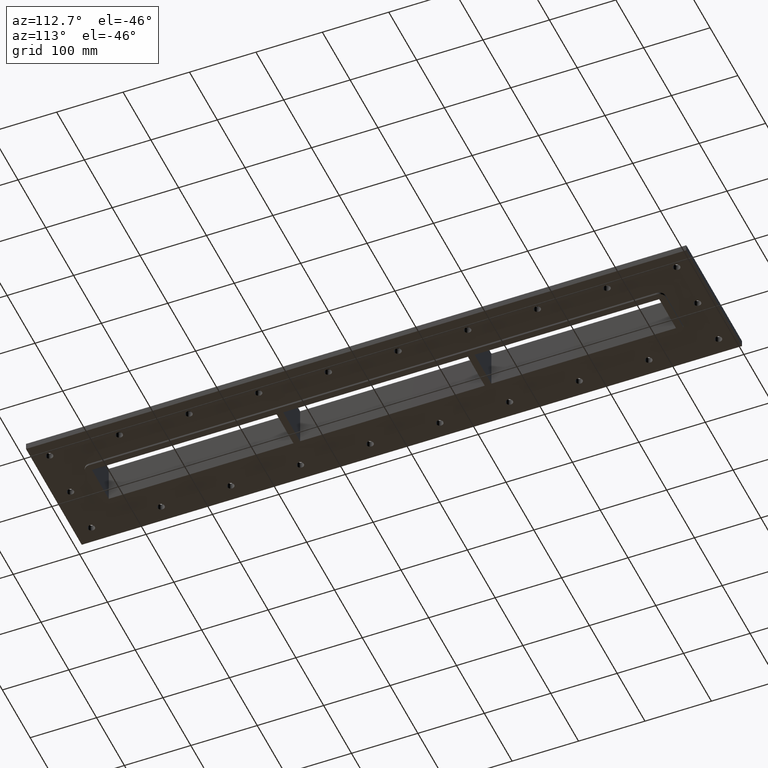
[diagram: clean part render]
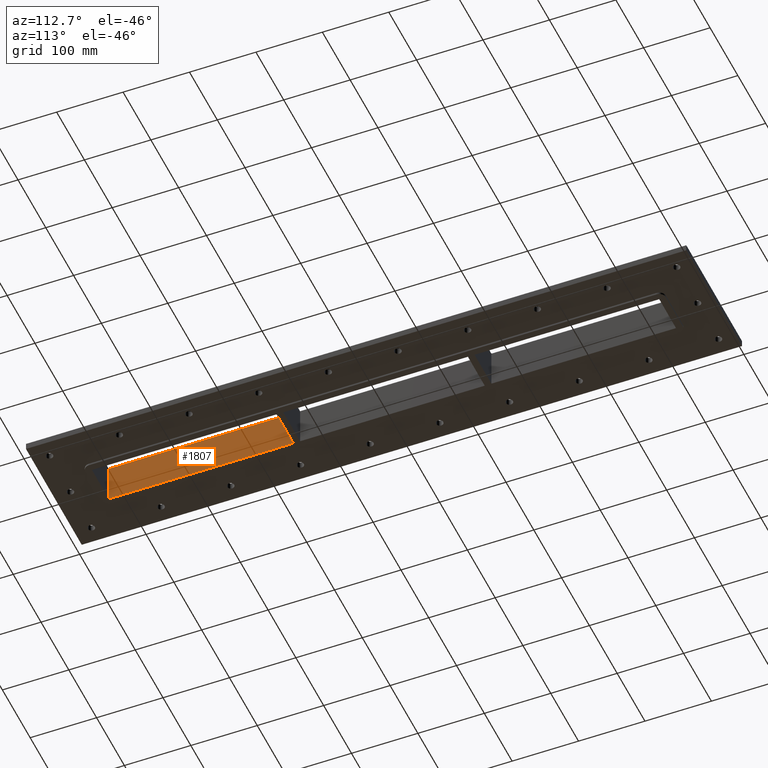
[diagram: same view with one face highlighted and labeled with its STEP entity id]
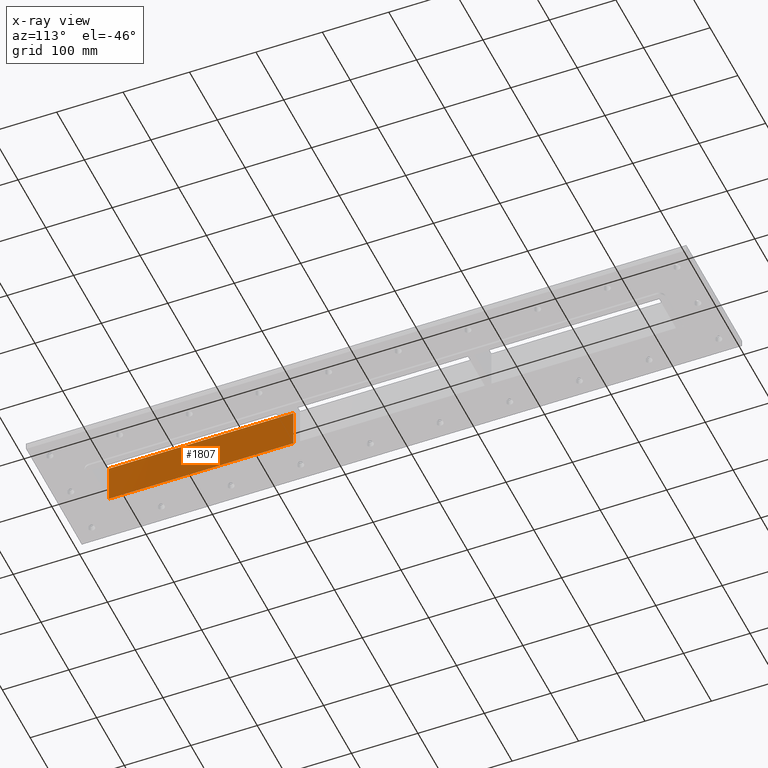
[diagram: x-ray of the same camera — body ghosted, the highlighted face saturated]
A machine part, auxiliary view. The second image highlights one B-rep face of the part: STEP entity #1807.
The next image is the same camera in x-ray: the body ghosted, the highlighted face saturated — about 0% of this face is hidden behind the body in this view.
In plain terms, the highlighted planar face has unit normal (-1, 0, 0).
Its self-contained STEP definition (entity closure, byte-faithful):
#1452=CARTESIAN_POINT('',(-30.249999999999911,-149.00000000000009,-30.0));
#1453=VERTEX_POINT('',#1452);
#1460=CARTESIAN_POINT('',(-30.249999999999826,-426.99999999999989,-30.0));
#1461=VERTEX_POINT('',#1460);
#1462=CARTESIAN_POINT('',(-30.249999999999908,-149.00000000000009,-30.0));
#1463=DIRECTION('',(0.0,-1.0,0.0));
#1464=VECTOR('',#1463,277.99999999999977);
#1465=LINE('',#1462,#1464);
#1466=EDGE_CURVE('',#1453,#1461,#1465,.T.);
#1777=CARTESIAN_POINT('',(-30.249999999999826,-426.99999999999989,30.0));
#1778=DIRECTION('',(-1.0,0.0,0.0));
#1779=DIRECTION('',(0.0,1.0,0.0));
#1780=AXIS2_PLACEMENT_3D('',#1777,#1778,#1779);
#1781=PLANE('',#1780);
#1782=ORIENTED_EDGE('',*,*,#1466,.F.);
#1783=CARTESIAN_POINT('',(-30.249999999999911,-149.00000000000009,30.0));
#1784=VERTEX_POINT('',#1783);
#1785=CARTESIAN_POINT('',(-30.249999999999911,-149.00000000000009,30.0));
#1786=DIRECTION('',(0.0,0.0,-1.0));
#1787=VECTOR('',#1786,60.0);
#1788=LINE('',#1785,#1787);
#1789=EDGE_CURVE('',#1784,#1453,#1788,.T.);
#1790=ORIENTED_EDGE('',*,*,#1789,.F.);
#1791=CARTESIAN_POINT('',(-30.249999999999826,-426.99999999999989,30.0));
#1792=VERTEX_POINT('',#1791);
#1793=CARTESIAN_POINT('',(-30.249999999999822,-426.99999999999989,30.0));
#1794=DIRECTION('',(0.0,1.0,0.0));
#1795=VECTOR('',#1794,277.99999999999977);
#1796=LINE('',#1793,#1795);
#1797=EDGE_CURVE('',#1792,#1784,#1796,.T.);
#1798=ORIENTED_EDGE('',*,*,#1797,.F.);
#1799=CARTESIAN_POINT('',(-30.249999999999826,-426.99999999999989,30.0));
#1800=DIRECTION('',(0.0,0.0,-1.0));
#1801=VECTOR('',#1800,60.0);
#1802=LINE('',#1799,#1801);
#1803=EDGE_CURVE('',#1792,#1461,#1802,.T.);
#1804=ORIENTED_EDGE('',*,*,#1803,.T.);
#1805=EDGE_LOOP('',(#1782,#1790,#1798,#1804));
#1806=FACE_OUTER_BOUND('',#1805,.T.);
#1807=ADVANCED_FACE('',(#1806),#1781,.F.);